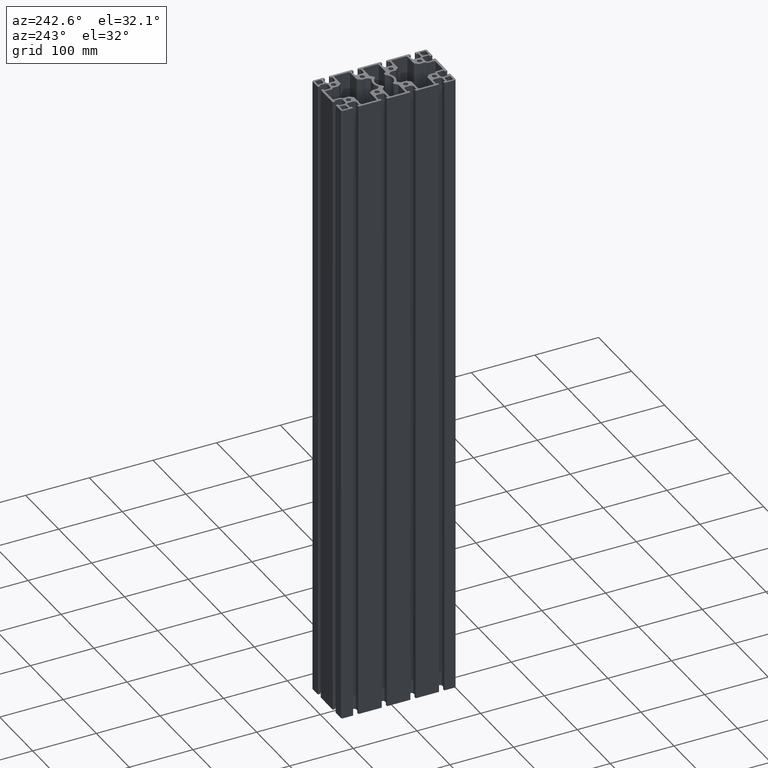
[diagram: clean part render]
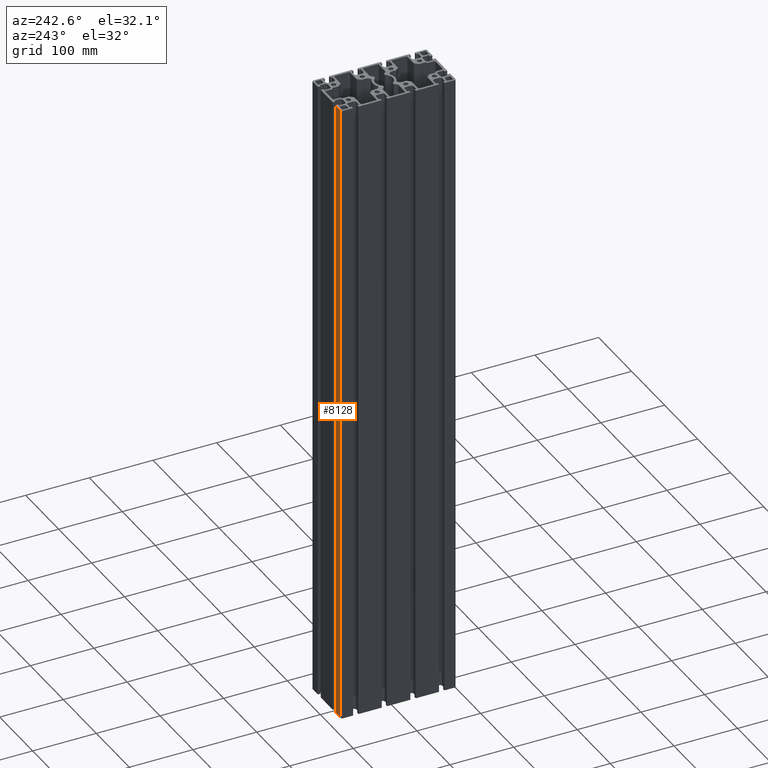
[diagram: same view with one face highlighted and labeled with its STEP entity id]
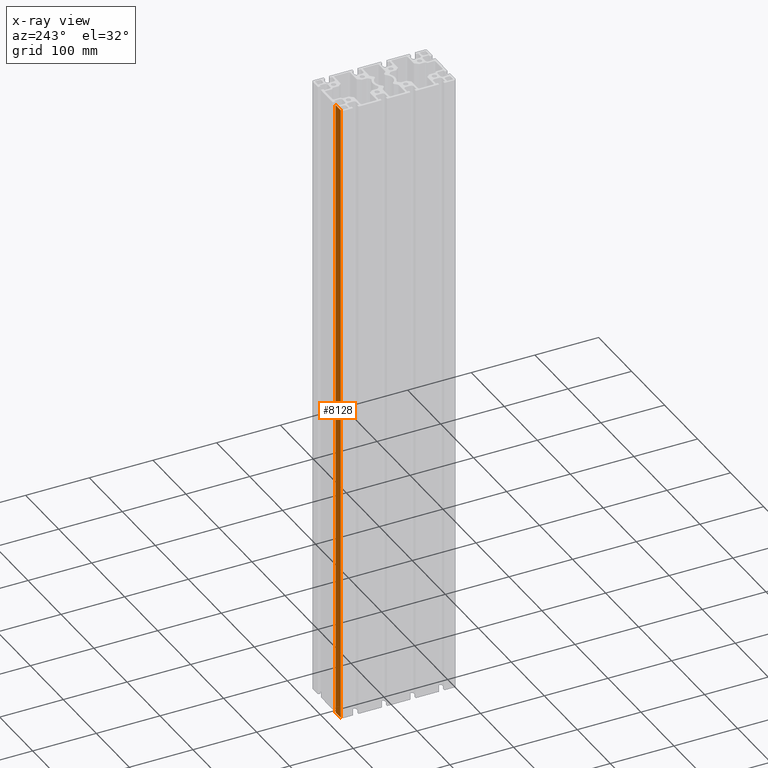
[diagram: x-ray of the same camera — body ghosted, the highlighted face saturated]
A machine part, auxiliary view. The second image highlights one B-rep face of the part: STEP entity #8128.
The next image is the same camera in x-ray: the body ghosted, the highlighted face saturated — about 0% of this face is hidden behind the body in this view.
In plain terms, the highlighted planar face has unit normal (-0, 1, 0).
Its self-contained STEP definition (entity closure, byte-faithful):
#177=PLANE('',#8839);
#534=FACE_OUTER_BOUND('',#944,.T.);
#944=EDGE_LOOP('',(#6301,#6302,#6303,#6304));
#1648=LINE('',#13143,#2488);
#1649=LINE('',#13146,#2489);
#1650=LINE('',#13148,#2490);
#1651=LINE('',#13149,#2491);
#2488=VECTOR('',#10719,10.);
#2489=VECTOR('',#10722,10.);
#2490=VECTOR('',#10723,10.);
#2491=VECTOR('',#10724,10.);
#3719=VERTEX_POINT('',#13139);
#3720=VERTEX_POINT('',#13141);
#3721=VERTEX_POINT('',#13145);
#3722=VERTEX_POINT('',#13147);
#4806=EDGE_CURVE('',#3719,#3720,#1648,.T.);
#4807=EDGE_CURVE('',#3719,#3721,#1649,.T.);
#4808=EDGE_CURVE('',#3722,#3720,#1650,.T.);
#4809=EDGE_CURVE('',#3721,#3722,#1651,.T.);
#6301=ORIENTED_EDGE('',*,*,#4807,.F.);
#6302=ORIENTED_EDGE('',*,*,#4806,.T.);
#6303=ORIENTED_EDGE('',*,*,#4808,.F.);
#6304=ORIENTED_EDGE('',*,*,#4809,.F.);
#8128=ADVANCED_FACE('',(#534),#177,.T.);
#8839=AXIS2_PLACEMENT_3D('',#13144,#10720,#10721);
#10719=DIRECTION('',(0.,0.,1.));
#10720=DIRECTION('center_axis',(-2.91623402950401E-13,1.,0.));
#10721=DIRECTION('ref_axis',(-1.,-2.91623402950401E-13,0.));
#10722=DIRECTION('',(1.,2.91623402950401E-13,0.));
#10723=DIRECTION('',(-1.,-2.91623402950401E-13,0.));
#10724=DIRECTION('',(0.,0.,1.));
#13139=CARTESIAN_POINT('',(-42.5000000000267,89.9999999999875,0.));
#13141=CARTESIAN_POINT('',(-42.5000000000267,89.9999999999875,1000.));
#13143=CARTESIAN_POINT('',(-42.5000000000267,89.9999999999875,0.));
#13144=CARTESIAN_POINT('Origin',(-27.1500000000268,89.9999999999919,0.));
#13145=CARTESIAN_POINT('',(-27.1500000000268,89.9999999999919,0.));
#13146=CARTESIAN_POINT('',(-42.5000000000267,89.9999999999875,0.));
#13147=CARTESIAN_POINT('',(-27.1500000000268,89.9999999999919,1000.));
#13148=CARTESIAN_POINT('',(-42.5000000000267,89.9999999999875,1000.));
#13149=CARTESIAN_POINT('',(-27.1500000000268,89.9999999999919,0.));